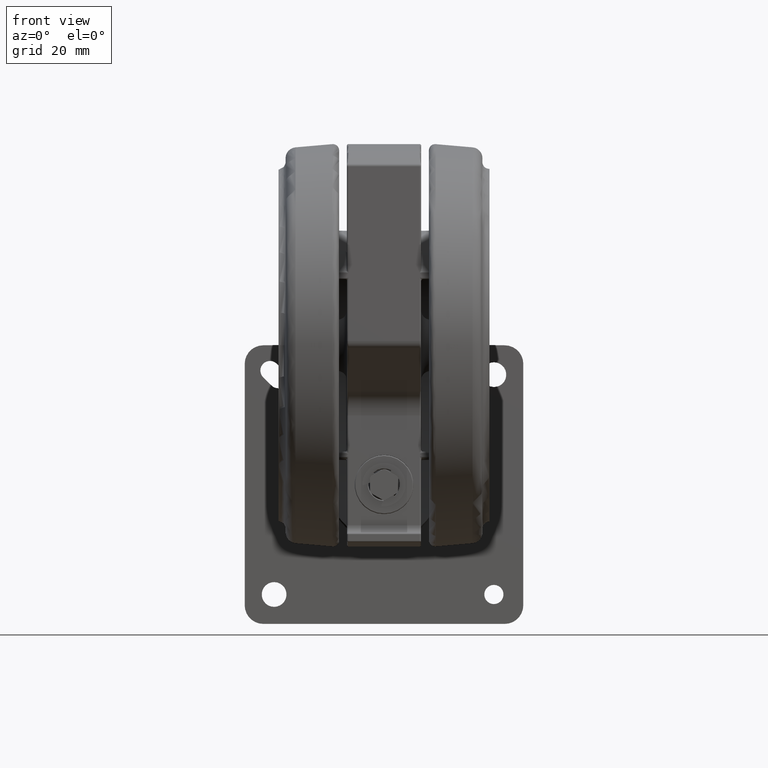
[diagram: clean part render]
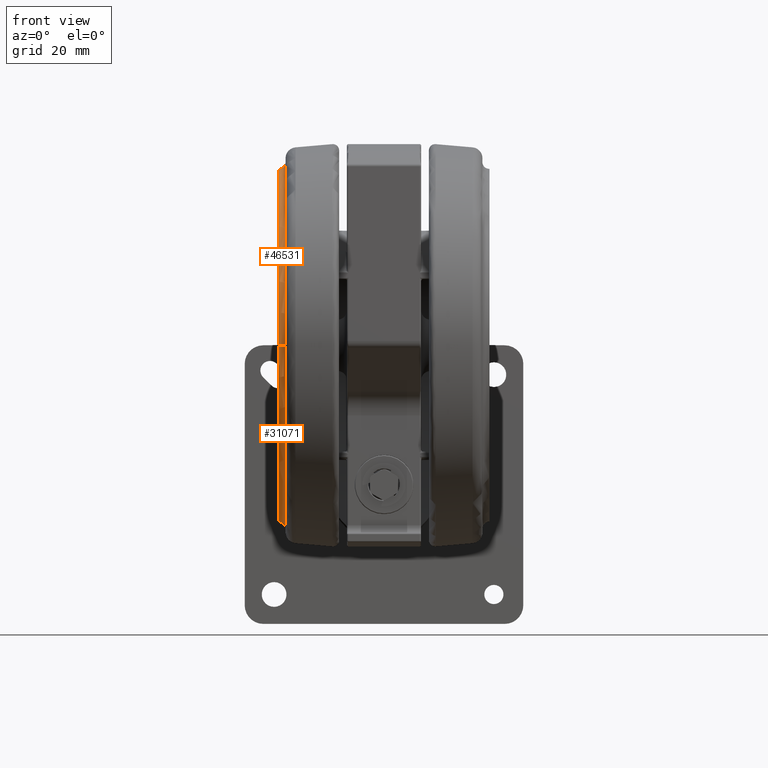
[diagram: same view with one multi-face feature highlighted, each face labeled with its STEP entity id]
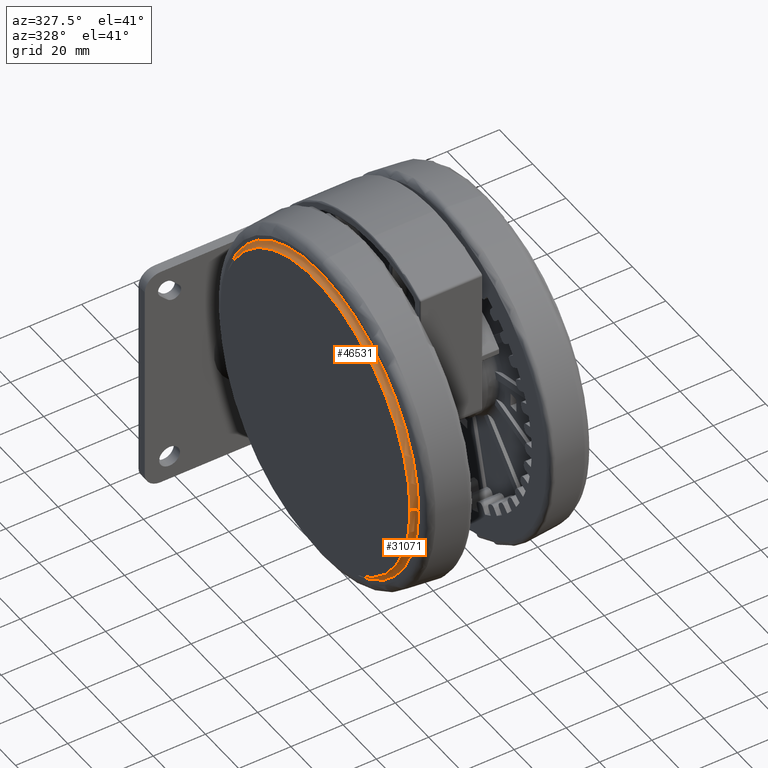
[diagram: same view with one multi-face feature highlighted, each face labeled with its STEP entity id]
A machine part, front view. The highlighted faces form ONE feature: a constant-radius fillet chain: 2 tangent blend faces with common blend radius 2.2 mm. The faces share edges in the B-rep.
A second angle (auxiliary view) of the same feature is appended — it is thin or edge-on in the first view.
Their STEP definitions:
[1] entity #31071 (Torus):
#2218 = ORIENTED_EDGE ( 'NONE', *, *, #4454, .F. ) ;
#4035 = EDGE_CURVE ( 'NONE', #59741, #27398, #26641, .T. ) ;
#4454 = EDGE_CURVE ( 'NONE', #70803, #37825, #18557, .T. ) ;
#4535 = EDGE_LOOP ( 'NONE', ( #24302, #53024, #2218, #22768 ) ) ;
#5065 = AXIS2_PLACEMENT_3D ( 'NONE', #24240, #64528, #30015 ) ;
#5594 = DIRECTION ( 'NONE',  ( -0.01070575572500160500, -0.9999426917550610100, 0.0000000000000000000 ) ) ;
#6246 = AXIS2_PLACEMENT_3D ( 'NONE', #74527, #40024, #5594 ) ;
#8070 = EDGE_CURVE ( 'NONE', #27398, #37825, #42017, .T. ) ;
#8318 = FACE_OUTER_BOUND ( 'NONE', #4535, .T. ) ;
#11388 = DIRECTION ( 'NONE',  ( -0.0000000000000000000, -0.0000000000000000000, -1.000000000000000000 ) ) ;
#16236 = CARTESIAN_POINT ( 'NONE',  ( 0.6102280763250850200, 56.99673343003851800, -68.07944947177028900 ) ) ;
#17985 = DIRECTION ( 'NONE',  ( 0.9999426917550609000, -0.01070575572500149200, 0.0000000000000000000 ) ) ;
#18557 = CIRCLE ( 'NONE', #65314, 57.00000000000000000 ) ;
#19039 = CARTESIAN_POINT ( 'NONE',  ( 0.0000000000000000000, 4.857225732735059900E-014, -68.07944947177028900 ) ) ;
#22768 = ORIENTED_EDGE ( 'NONE', *, *, #48083, .F. ) ;
#23599 = TOROIDAL_SURFACE ( 'NONE', #64184, 59.20000000000000300, 2.200000000000000200 ) ;
#24240 = CARTESIAN_POINT ( 'NONE',  ( 0.0000000000000000000, 4.857225732735059900E-014, -65.91297524251754700 ) ) ;
#24302 = ORIENTED_EDGE ( 'NONE', *, *, #4035, .T. ) ;
#26641 = CIRCLE ( 'NONE', #5065, 58.81739130434760200 ) ;
#27398 = VERTEX_POINT ( 'NONE', #56247 ) ;
#30015 = DIRECTION ( 'NONE',  ( -0.01070575572500149200, -0.9999426917550609000, 0.0000000000000000000 ) ) ;
#31071 = ADVANCED_FACE ( 'NONE', ( #8318 ), #23599, .F. ) ;
#32082 = AXIS2_PLACEMENT_3D ( 'NONE', #52474, #17985, #58286 ) ;
#34749 = CARTESIAN_POINT ( 'NONE',  ( 0.6296846236862080300, 58.81402058288343000, -65.91297524251754700 ) ) ;
#37825 = VERTEX_POINT ( 'NONE', #56286 ) ;
#40024 = DIRECTION ( 'NONE',  ( -0.9999426917550609000, 0.01070575572500161500, 0.0000000000000000000 ) ) ;
#42017 = CIRCLE ( 'NONE', #6246, 2.200000000000000200 ) ;
#45815 = CARTESIAN_POINT ( 'NONE',  ( 0.0000000000000000000, 4.857225732735059900E-014, -68.07944947177028900 ) ) ;
#48083 = EDGE_CURVE ( 'NONE', #59741, #70803, #51771, .T. ) ;
#51632 = DIRECTION ( 'NONE',  ( 0.01070575572500149200, 0.9999426917550607900, 0.0000000000000000000 ) ) ;
#51771 = CIRCLE ( 'NONE', #32082, 2.200000000000000200 ) ;
#52474 = CARTESIAN_POINT ( 'NONE',  ( 0.6337807389200883500, 59.19660735189965100, -68.07944947177028900 ) ) ;
#53024 = ORIENTED_EDGE ( 'NONE', *, *, #8070, .T. ) ;
#56247 = CARTESIAN_POINT ( 'NONE',  ( -0.6296846236862152500, -58.81402058288333000, -65.91297524251754700 ) ) ;
#56286 = CARTESIAN_POINT ( 'NONE',  ( -0.6102280763250920200, -56.99673343003842500, -68.07944947177028900 ) ) ;
#58286 = DIRECTION ( 'NONE',  ( 0.01070575572500150400, 0.9999426917550610100, 0.0000000000000000000 ) ) ;
#59327 = DIRECTION ( 'NONE',  ( 0.0000000000000000000, 0.0000000000000000000, 1.000000000000000000 ) ) ;
#59741 = VERTEX_POINT ( 'NONE', #34749 ) ;
#64184 = AXIS2_PLACEMENT_3D ( 'NONE', #19039, #59327, #65083 ) ;
#64528 = DIRECTION ( 'NONE',  ( 0.0000000000000000000, 0.0000000000000000000, -1.000000000000000000 ) ) ;
#65083 = DIRECTION ( 'NONE',  ( 0.01070575572500149200, 0.9999426917550609000, 0.0000000000000000000 ) ) ;
#65314 = AXIS2_PLACEMENT_3D ( 'NONE', #45815, #11388, #51632 ) ;
#70803 = VERTEX_POINT ( 'NONE', #16236 ) ;
#74527 = CARTESIAN_POINT ( 'NONE',  ( -0.6337807389200955700, -59.19660735189955900, -68.07944947177028900 ) ) ;
[2] entity #46531 (Torus):
#5594 = DIRECTION ( 'NONE',  ( -0.01070575572500160500, -0.9999426917550610100, 0.0000000000000000000 ) ) ;
#6246 = AXIS2_PLACEMENT_3D ( 'NONE', #74527, #40024, #5594 ) ;
#6536 = ORIENTED_EDGE ( 'NONE', *, *, #8070, .F. ) ;
#8070 = EDGE_CURVE ( 'NONE', #27398, #37825, #42017, .T. ) ;
#13253 = ORIENTED_EDGE ( 'NONE', *, *, #41453, .T. ) ;
#16236 = CARTESIAN_POINT ( 'NONE',  ( 0.6102280763250850200, 56.99673343003851800, -68.07944947177028900 ) ) ;
#17985 = DIRECTION ( 'NONE',  ( 0.9999426917550609000, -0.01070575572500149200, 0.0000000000000000000 ) ) ;
#18266 = CARTESIAN_POINT ( 'NONE',  ( 0.0000000000000000000, 4.857225732735059900E-014, -68.07944947177028900 ) ) ;
#24015 = DIRECTION ( 'NONE',  ( 0.01070575572500149200, 0.9999426917550607900, 0.0000000000000000000 ) ) ;
#24184 = ORIENTED_EDGE ( 'NONE', *, *, #73148, .F. ) ;
#27398 = VERTEX_POINT ( 'NONE', #56247 ) ;
#27598 = FACE_OUTER_BOUND ( 'NONE', #69815, .T. ) ;
#28761 = CARTESIAN_POINT ( 'NONE',  ( 0.0000000000000000000, 4.857225732735059900E-014, -65.91297524251754700 ) ) ;
#32082 = AXIS2_PLACEMENT_3D ( 'NONE', #52474, #17985, #58286 ) ;
#34536 = DIRECTION ( 'NONE',  ( -0.01070575572500149200, -0.9999426917550609000, 0.0000000000000000000 ) ) ;
#34749 = CARTESIAN_POINT ( 'NONE',  ( 0.6296846236862080300, 58.81402058288343000, -65.91297524251754700 ) ) ;
#37825 = VERTEX_POINT ( 'NONE', #56286 ) ;
#40024 = DIRECTION ( 'NONE',  ( -0.9999426917550609000, 0.01070575572500161500, 0.0000000000000000000 ) ) ;
#41453 = EDGE_CURVE ( 'NONE', #27398, #59741, #66967, .T. ) ;
#42017 = CIRCLE ( 'NONE', #6246, 2.200000000000000200 ) ;
#42898 = TOROIDAL_SURFACE ( 'NONE', #65329, 59.20000000000000300, 2.200000000000000200 ) ;
#46215 = ORIENTED_EDGE ( 'NONE', *, *, #48083, .T. ) ;
#46531 = ADVANCED_FACE ( 'NONE', ( #27598 ), #42898, .F. ) ;
#46944 = CARTESIAN_POINT ( 'NONE',  ( 0.0000000000000000000, 4.857225732735059900E-014, -68.07944947177028900 ) ) ;
#48083 = EDGE_CURVE ( 'NONE', #59741, #70803, #51771, .T. ) ;
#50852 = AXIS2_PLACEMENT_3D ( 'NONE', #28761, #69075, #34536 ) ;
#51771 = CIRCLE ( 'NONE', #32082, 2.200000000000000200 ) ;
#52474 = CARTESIAN_POINT ( 'NONE',  ( 0.6337807389200883500, 59.19660735189965100, -68.07944947177028900 ) ) ;
#52510 = DIRECTION ( 'NONE',  ( 0.0000000000000000000, 0.0000000000000000000, 1.000000000000000000 ) ) ;
#56247 = CARTESIAN_POINT ( 'NONE',  ( -0.6296846236862152500, -58.81402058288333000, -65.91297524251754700 ) ) ;
#56286 = CARTESIAN_POINT ( 'NONE',  ( -0.6102280763250920200, -56.99673343003842500, -68.07944947177028900 ) ) ;
#58286 = DIRECTION ( 'NONE',  ( 0.01070575572500150400, 0.9999426917550610100, 0.0000000000000000000 ) ) ;
#58543 = DIRECTION ( 'NONE',  ( -0.0000000000000000000, -0.0000000000000000000, -1.000000000000000000 ) ) ;
#58553 = DIRECTION ( 'NONE',  ( 0.01070575572500149200, 0.9999426917550609000, 0.0000000000000000000 ) ) ;
#59741 = VERTEX_POINT ( 'NONE', #34749 ) ;
#63359 = AXIS2_PLACEMENT_3D ( 'NONE', #18266, #58543, #24015 ) ;
#65329 = AXIS2_PLACEMENT_3D ( 'NONE', #46944, #52510, #58553 ) ;
#66967 = CIRCLE ( 'NONE', #50852, 58.81739130434760200 ) ;
#69075 = DIRECTION ( 'NONE',  ( 0.0000000000000000000, 0.0000000000000000000, -1.000000000000000000 ) ) ;
#69815 = EDGE_LOOP ( 'NONE', ( #6536, #13253, #46215, #24184 ) ) ;
#70803 = VERTEX_POINT ( 'NONE', #16236 ) ;
#71204 = CIRCLE ( 'NONE', #63359, 57.00000000000000000 ) ;
#73148 = EDGE_CURVE ( 'NONE', #37825, #70803, #71204, .T. ) ;
#74527 = CARTESIAN_POINT ( 'NONE',  ( -0.6337807389200955700, -59.19660735189955900, -68.07944947177028900 ) ) ;